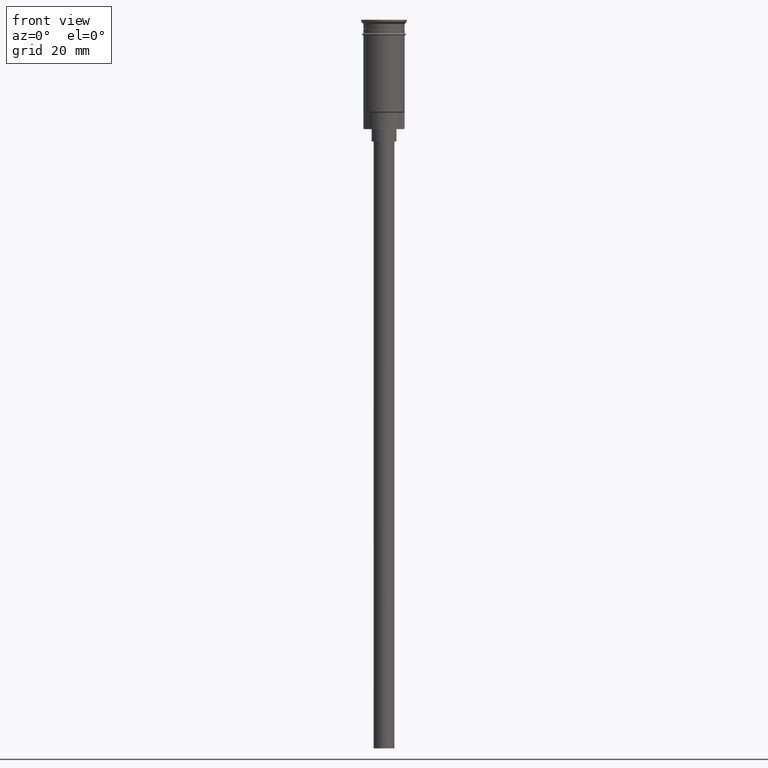
[diagram: clean part render]
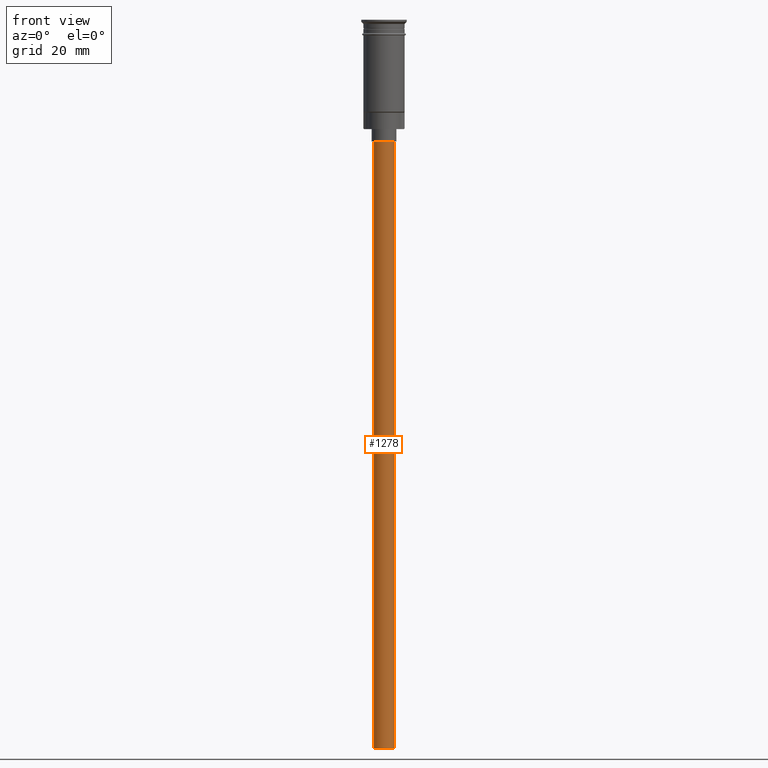
[diagram: same view with one face highlighted and labeled with its STEP entity id]
A machine part, front view. The second image highlights one B-rep face of the part: STEP entity #1278.
In plain terms, the highlighted cylindrical surface (edge-blend (fillet) strip) has radius 2.5 mm, axis along (-0, -0, 1).
Its self-contained STEP definition (entity closure, byte-faithful):
#11 = LINE ( 'NONE', #1476, #856 ) ;
#47 = DIRECTION ( 'NONE',  ( 0.000000000000000000, 0.000000000000000000, -1.000000000000000000 ) ) ;
#226 = CARTESIAN_POINT ( 'NONE',  ( -2.500000000000000000, 3.061616997868383141E-16, -176.5000000000000000 ) ) ;
#286 = VERTEX_POINT ( 'NONE', #527 ) ;
#315 = CIRCLE ( 'NONE', #701, 2.500000000000000000 ) ;
#317 = EDGE_CURVE ( 'NONE', #286, #966, #435, .T. ) ;
#334 = AXIS2_PLACEMENT_3D ( 'NONE', #763, #1516, #757 ) ;
#335 = LINE ( 'NONE', #226, #671 ) ;
#368 = CARTESIAN_POINT ( 'NONE',  ( 0.000000000000000000, 0.000000000000000000, -176.5000000000000000 ) ) ;
#413 = ORIENTED_EDGE ( 'NONE', *, *, #317, .T. ) ;
#435 = CIRCLE ( 'NONE', #334, 2.500000000000000000 ) ;
#475 = DIRECTION ( 'NONE',  ( -0.000000000000000000, -0.000000000000000000, 1.000000000000000000 ) ) ;
#527 = CARTESIAN_POINT ( 'NONE',  ( 2.500000000000000000, 0.000000000000000000, -29.50000000000000000 ) ) ;
#528 = CARTESIAN_POINT ( 'NONE',  ( 0.000000000000000000, 0.000000000000000000, -176.5000000000000000 ) ) ;
#620 = DIRECTION ( 'NONE',  ( -0.000000000000000000, -0.000000000000000000, 1.000000000000000000 ) ) ;
#662 = EDGE_LOOP ( 'NONE', ( #1160, #1204, #1259, #413 ) ) ;
#671 = VECTOR ( 'NONE', #1181, 1000.000000000000000 ) ;
#701 = AXIS2_PLACEMENT_3D ( 'NONE', #528, #47, #796 ) ;
#757 = DIRECTION ( 'NONE',  ( -1.000000000000000000, 0.000000000000000000, 0.000000000000000000 ) ) ;
#763 = CARTESIAN_POINT ( 'NONE',  ( 0.000000000000000000, 0.000000000000000000, -29.50000000000000000 ) ) ;
#796 = DIRECTION ( 'NONE',  ( -1.000000000000000000, 0.000000000000000000, 0.000000000000000000 ) ) ;
#824 = VERTEX_POINT ( 'NONE', #859 ) ;
#856 = VECTOR ( 'NONE', #475, 1000.000000000000000 ) ;
#859 = CARTESIAN_POINT ( 'NONE',  ( -2.500000000000000000, 3.061616997868383141E-16, -176.5000000000000000 ) ) ;
#871 = FACE_OUTER_BOUND ( 'NONE', #662, .T. ) ;
#918 = EDGE_CURVE ( 'NONE', #1149, #286, #11, .T. ) ;
#966 = VERTEX_POINT ( 'NONE', #979 ) ;
#979 = CARTESIAN_POINT ( 'NONE',  ( -2.500000000000000000, 3.061616997868383141E-16, -29.50000000000000000 ) ) ;
#1149 = VERTEX_POINT ( 'NONE', #1470 ) ;
#1160 = ORIENTED_EDGE ( 'NONE', *, *, #1513, .F. ) ;
#1181 = DIRECTION ( 'NONE',  ( -0.000000000000000000, -0.000000000000000000, 1.000000000000000000 ) ) ;
#1204 = ORIENTED_EDGE ( 'NONE', *, *, #1297, .F. ) ;
#1259 = ORIENTED_EDGE ( 'NONE', *, *, #918, .T. ) ;
#1278 = ADVANCED_FACE ( 'NONE', ( #871 ), #1481, .T. ) ;
#1293 = DIRECTION ( 'NONE',  ( 1.000000000000000000, 0.000000000000000000, 0.000000000000000000 ) ) ;
#1297 = EDGE_CURVE ( 'NONE', #1149, #824, #315, .T. ) ;
#1470 = CARTESIAN_POINT ( 'NONE',  ( 2.500000000000000000, 0.000000000000000000, -176.5000000000000000 ) ) ;
#1476 = CARTESIAN_POINT ( 'NONE',  ( 2.500000000000000000, 0.000000000000000000, -176.5000000000000000 ) ) ;
#1481 = CYLINDRICAL_SURFACE ( 'NONE', #1528, 2.500000000000000000 ) ;
#1513 = EDGE_CURVE ( 'NONE', #824, #966, #335, .T. ) ;
#1516 = DIRECTION ( 'NONE',  ( 0.000000000000000000, 0.000000000000000000, -1.000000000000000000 ) ) ;
#1528 = AXIS2_PLACEMENT_3D ( 'NONE', #368, #620, #1293 ) ;